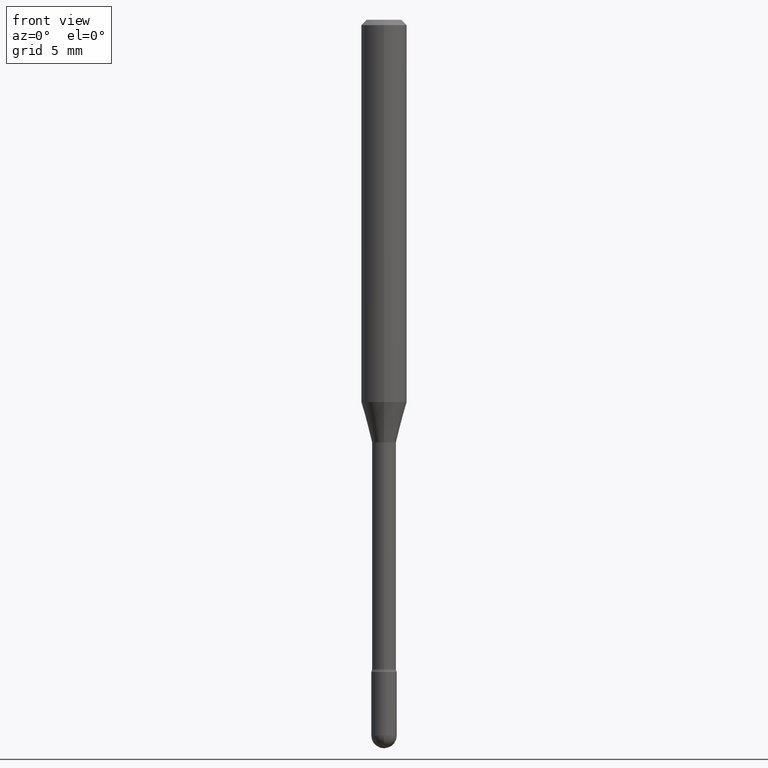
[diagram: clean part render]
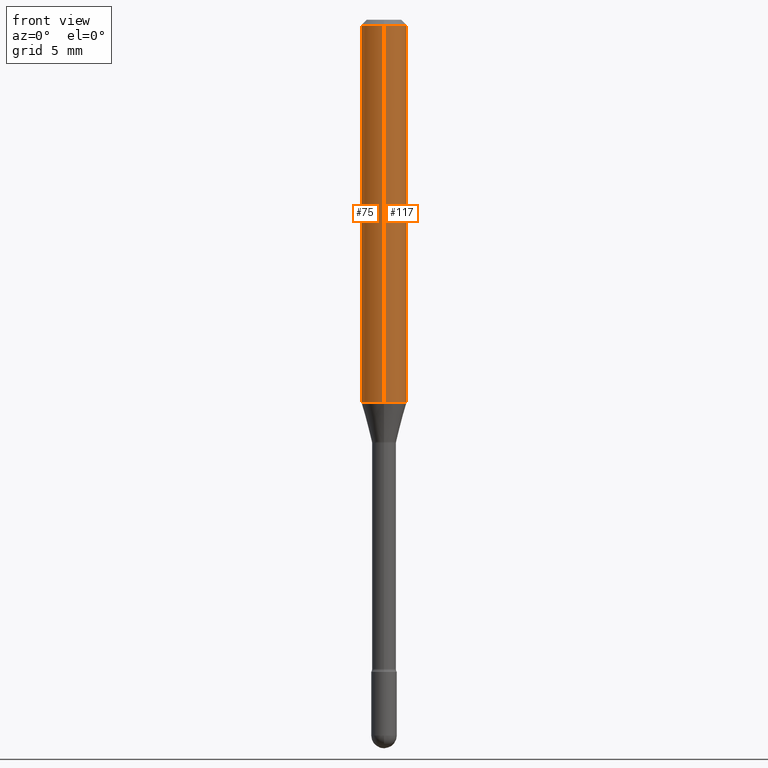
[diagram: same view with one multi-face feature highlighted, each face labeled with its STEP entity id]
A machine part, front view. The highlighted faces form ONE feature: a constant-radius fillet chain: 2 tangent blend faces with common blend radius 1.5875 mm. The faces share edges in the B-rep.
Their STEP definitions:
[1] entity #117 (Cylinder):
#9 = CARTESIAN_POINT ( 'NONE',  ( 4.440892098500625669E-16, 0.06250000000000000000, 2.598583998425296453E-16 ) ) ;
#10 = VERTEX_POINT ( 'NONE', #550 ) ;
#86 = DIRECTION ( 'NONE',  ( -2.445497683573463397E-29, 3.491439984779462686E-15, 1.000000000000000000 ) ) ;
#93 = ORIENTED_EDGE ( 'NONE', *, *, #431, .T. ) ;
#100 = AXIS2_PLACEMENT_3D ( 'NONE', #461, #154, #236 ) ;
#117 = ADVANCED_FACE ( 'NONE', ( #552 ), #503, .T. ) ;
#120 = DIRECTION ( 'NONE',  ( -6.982962677686265922E-15, -1.000000000000000000, 3.483106191921935554E-15 ) ) ;
#126 = DIRECTION ( 'NONE',  ( -2.445497683573463397E-29, 3.491439984779462686E-15, 1.000000000000000000 ) ) ;
#133 = VECTOR ( 'NONE', #126, 39.37007874015748143 ) ;
#154 = DIRECTION ( 'NONE',  ( -2.445497683573463397E-29, 3.491439984779462686E-15, 1.000000000000000000 ) ) ;
#173 = VERTEX_POINT ( 'NONE', #470 ) ;
#175 = CARTESIAN_POINT ( 'NONE',  ( -4.364351673553658835E-16, -0.06250000000000366374, -1.049531296095960853 ) ) ;
#188 = EDGE_CURVE ( 'NONE', #462, #10, #385, .T. ) ;
#201 = DIRECTION ( 'NONE',  ( -2.445497683573463397E-29, 3.491439984779462686E-15, 1.000000000000000000 ) ) ;
#222 = LINE ( 'NONE', #9, #442 ) ;
#236 = DIRECTION ( 'NONE',  ( -6.982962677686265922E-15, -1.000000000000000000, 3.491439984779462292E-15 ) ) ;
#238 = ORIENTED_EDGE ( 'NONE', *, *, #188, .F. ) ;
#269 = CARTESIAN_POINT ( 'NONE',  ( -4.364351673553916201E-16, -0.06250000000000000000, 6.962883979399624318E-16 ) ) ;
#292 = EDGE_CURVE ( 'NONE', #495, #173, #524, .T. ) ;
#297 = AXIS2_PLACEMENT_3D ( 'NONE', #394, #388, #517 ) ;
#358 = ORIENTED_EDGE ( 'NONE', *, *, #292, .T. ) ;
#385 = CIRCLE ( 'NONE', #400, 0.06250000000000000000 ) ;
#388 = DIRECTION ( 'NONE',  ( -2.445497683573463397E-29, 3.491439984779462686E-15, 1.000000000000000000 ) ) ;
#394 = CARTESIAN_POINT ( 'NONE',  ( 2.566626353440528363E-29, -3.664375532466852274E-15, -1.049531296095961297 ) ) ;
#400 = AXIS2_PLACEMENT_3D ( 'NONE', #564, #201, #120 ) ;
#406 = LINE ( 'NONE', #269, #133 ) ;
#409 = ORIENTED_EDGE ( 'NONE', *, *, #472, .F. ) ;
#431 = EDGE_CURVE ( 'NONE', #173, #10, #222, .T. ) ;
#442 = VECTOR ( 'NONE', #86, 39.37007874015748143 ) ;
#461 = CARTESIAN_POINT ( 'NONE',  ( -1.169113584055446105E-44, 1.669184350826100908E-30, 4.780733988912460139E-16 ) ) ;
#462 = VERTEX_POINT ( 'NONE', #526 ) ;
#470 = CARTESIAN_POINT ( 'NONE',  ( 4.440892098500882541E-16, 0.06249999999999634320, -1.049531296095961519 ) ) ;
#472 = EDGE_CURVE ( 'NONE', #495, #462, #406, .T. ) ;
#493 = EDGE_LOOP ( 'NONE', ( #358, #93, #238, #409 ) ) ;
#495 = VERTEX_POINT ( 'NONE', #175 ) ;
#503 = CYLINDRICAL_SURFACE ( 'NONE', #100, 0.06250000000000000000 ) ;
#517 = DIRECTION ( 'NONE',  ( -6.982962677686265922E-15, -1.000000000000000000, 4.370956789862821150E-15 ) ) ;
#524 = CIRCLE ( 'NONE', #297, 0.06250000000000000000 ) ;
#526 = CARTESIAN_POINT ( 'NONE',  ( -4.364351673553912750E-16, -0.06250000000000005551, -0.01499999999999986587 ) ) ;
#550 = CARTESIAN_POINT ( 'NONE',  ( 4.440892098500883528E-16, 0.06249999999999993755, -0.01500000000000030129 ) ) ;
#552 = FACE_OUTER_BOUND ( 'NONE', #493, .T. ) ;
#564 = CARTESIAN_POINT ( 'NONE',  ( 3.668246525360215467E-31, -5.237159977169223045E-17, -0.01500000000000008271 ) ) ;
[2] entity #75 (Cylinder):
#9 = CARTESIAN_POINT ( 'NONE',  ( 4.440892098500625669E-16, 0.06250000000000000000, 2.598583998425296453E-16 ) ) ;
#10 = VERTEX_POINT ( 'NONE', #550 ) ;
#22 = FACE_OUTER_BOUND ( 'NONE', #322, .T. ) ;
#30 = DIRECTION ( 'NONE',  ( -2.445497683573463397E-29, 3.491439984779462686E-15, 1.000000000000000000 ) ) ;
#37 = DIRECTION ( 'NONE',  ( -6.982962677686265922E-15, -1.000000000000000000, 3.483106191921935554E-15 ) ) ;
#75 = ADVANCED_FACE ( 'NONE', ( #22 ), #199, .T. ) ;
#77 = CARTESIAN_POINT ( 'NONE',  ( 2.566626353440528363E-29, -3.664375532466852274E-15, -1.049531296095961297 ) ) ;
#86 = DIRECTION ( 'NONE',  ( -2.445497683573463397E-29, 3.491439984779462686E-15, 1.000000000000000000 ) ) ;
#126 = DIRECTION ( 'NONE',  ( -2.445497683573463397E-29, 3.491439984779462686E-15, 1.000000000000000000 ) ) ;
#133 = VECTOR ( 'NONE', #126, 39.37007874015748143 ) ;
#149 = CARTESIAN_POINT ( 'NONE',  ( -1.169113584055446105E-44, 1.669184350826100908E-30, 4.780733988912460139E-16 ) ) ;
#162 = CARTESIAN_POINT ( 'NONE',  ( 3.668246525360215467E-31, -5.237159977169223045E-17, -0.01500000000000008271 ) ) ;
#173 = VERTEX_POINT ( 'NONE', #470 ) ;
#175 = CARTESIAN_POINT ( 'NONE',  ( -4.364351673553658835E-16, -0.06250000000000366374, -1.049531296095960853 ) ) ;
#199 = CYLINDRICAL_SURFACE ( 'NONE', #436, 0.06250000000000000000 ) ;
#222 = LINE ( 'NONE', #9, #442 ) ;
#253 = EDGE_CURVE ( 'NONE', #173, #495, #336, .T. ) ;
#267 = ORIENTED_EDGE ( 'NONE', *, *, #253, .T. ) ;
#269 = CARTESIAN_POINT ( 'NONE',  ( -4.364351673553916201E-16, -0.06250000000000000000, 6.962883979399624318E-16 ) ) ;
#283 = EDGE_CURVE ( 'NONE', #10, #462, #363, .T. ) ;
#322 = EDGE_LOOP ( 'NONE', ( #368, #267, #325, #498 ) ) ;
#325 = ORIENTED_EDGE ( 'NONE', *, *, #472, .T. ) ;
#327 = AXIS2_PLACEMENT_3D ( 'NONE', #162, #342, #37 ) ;
#336 = CIRCLE ( 'NONE', #343, 0.06250000000000000000 ) ;
#342 = DIRECTION ( 'NONE',  ( -2.445497683573463397E-29, 3.491439984779462686E-15, 1.000000000000000000 ) ) ;
#343 = AXIS2_PLACEMENT_3D ( 'NONE', #77, #30, #391 ) ;
#363 = CIRCLE ( 'NONE', #327, 0.06250000000000000000 ) ;
#368 = ORIENTED_EDGE ( 'NONE', *, *, #431, .F. ) ;
#391 = DIRECTION ( 'NONE',  ( -6.982962677686265922E-15, -1.000000000000000000, 4.370956789862821150E-15 ) ) ;
#406 = LINE ( 'NONE', #269, #133 ) ;
#424 = DIRECTION ( 'NONE',  ( -2.445497683573463397E-29, 3.491439984779462686E-15, 1.000000000000000000 ) ) ;
#431 = EDGE_CURVE ( 'NONE', #173, #10, #222, .T. ) ;
#436 = AXIS2_PLACEMENT_3D ( 'NONE', #149, #424, #506 ) ;
#442 = VECTOR ( 'NONE', #86, 39.37007874015748143 ) ;
#462 = VERTEX_POINT ( 'NONE', #526 ) ;
#470 = CARTESIAN_POINT ( 'NONE',  ( 4.440892098500882541E-16, 0.06249999999999634320, -1.049531296095961519 ) ) ;
#472 = EDGE_CURVE ( 'NONE', #495, #462, #406, .T. ) ;
#495 = VERTEX_POINT ( 'NONE', #175 ) ;
#498 = ORIENTED_EDGE ( 'NONE', *, *, #283, .F. ) ;
#506 = DIRECTION ( 'NONE',  ( -6.982962677686265922E-15, -1.000000000000000000, 3.491439984779462292E-15 ) ) ;
#526 = CARTESIAN_POINT ( 'NONE',  ( -4.364351673553912750E-16, -0.06250000000000005551, -0.01499999999999986587 ) ) ;
#550 = CARTESIAN_POINT ( 'NONE',  ( 4.440892098500883528E-16, 0.06249999999999993755, -0.01500000000000030129 ) ) ;